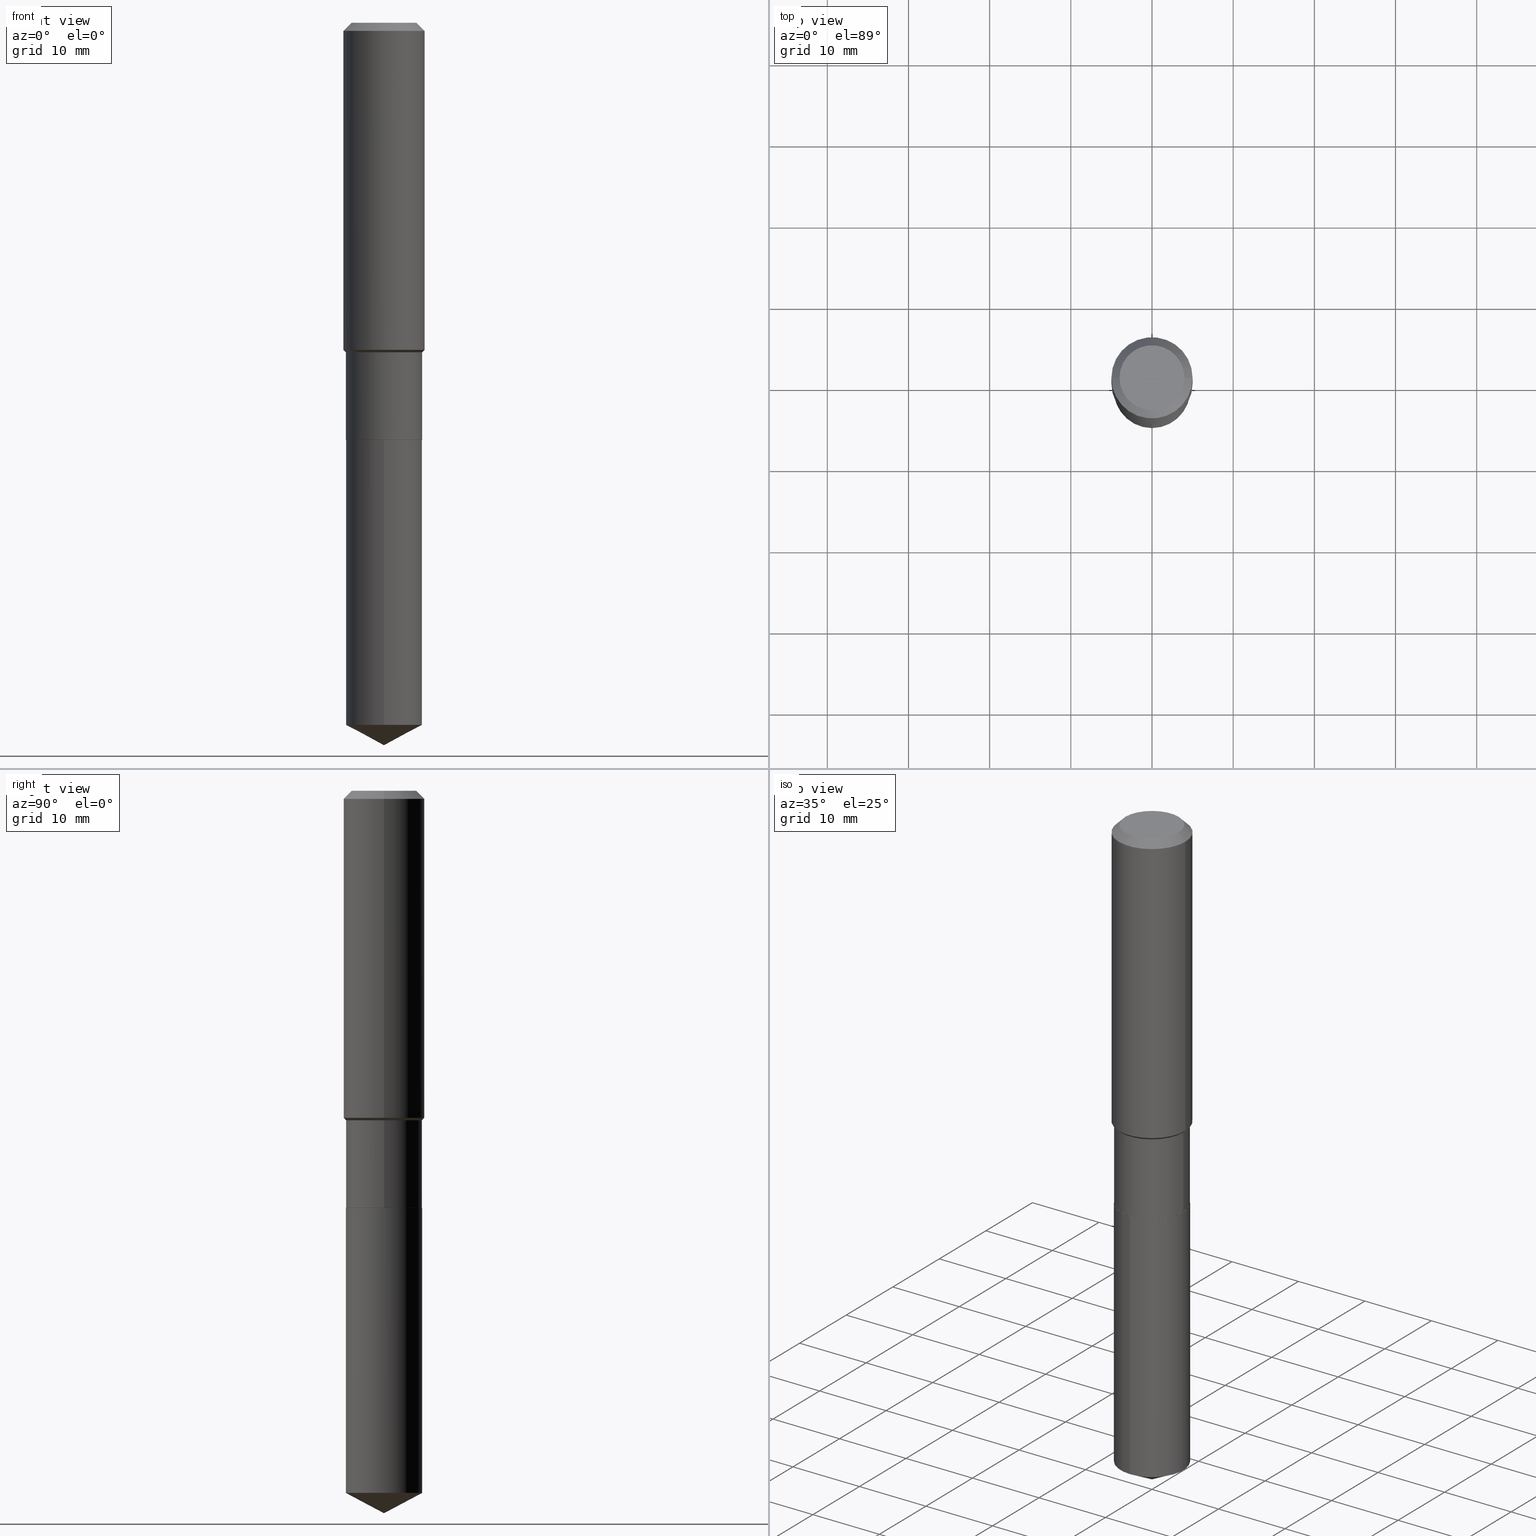
[diagram: canonical four-view strip — front | top / right | iso, engineering-drawing reading convention]
A machine part, canonical four-view strip (front | top / right | iso — engineering-drawing reading convention). The complete STEP part file that produces these views, byte-faithful:
ISO-10303-21;
HEADER;
FILE_DESCRIPTION (( 'STEP AP203' ),
    '1' );
FILE_NAME ('64664.STEP',
    '2024-04-24T18:39:49',
    ( '' ),
    ( '' ),
    'SwSTEP 2.0',
    'SolidWorks 2023',
    '' );
FILE_SCHEMA (( 'CONFIG_CONTROL_DESIGN' ));
ENDSEC;

DATA;
#1 = LINE ( 'NONE', #414, #420 ) ;
#2 = EDGE_CURVE ( 'NONE', #419, #167, #350, .T. ) ;
#3 = DIRECTION ( 'NONE',  ( -2.445468806185136597E-29, 3.491481338843145583E-15, 1.000000000000000000 ) ) ;
#4 = AXIS2_PLACEMENT_3D ( 'NONE', #230, #344, #196 ) ;
#5 = ADVANCED_FACE ( 'NONE', ( #395 ), #162, .T. ) ;
#6 = APPROVAL_DATE_TIME ( #483, #141 ) ;
#7 = UNCERTAINTY_MEASURE_WITH_UNIT (LENGTH_MEASURE( 1.000000000000000082E-05 ), #149, 'distance_accuracy_value', 'NONE');
#8 = AXIS2_PLACEMENT_3D ( 'NONE', #365, #328, #450 ) ;
#9 = EDGE_LOOP ( 'NONE', ( #110, #153, #85 ) ) ;
#10 = CARTESIAN_POINT ( 'NONE',  ( 4.948650676196241876E-29, -7.065361637282988500E-15, -2.023599999999999621 ) ) ;
#11 = VERTEX_POINT ( 'NONE', #296 ) ;
#12 = PRODUCT_RELATED_PRODUCT_CATEGORY ( 'detail', '', ( #374 ) ) ;
#13 = EDGE_LOOP ( 'NONE', ( #87, #258 ) ) ;
#14 = DIRECTION ( 'NONE',  ( 0.7071067811865450192, -7.319954787623246579E-15, -0.7071067811865500152 ) ) ;
#15 = AXIS2_PLACEMENT_3D ( 'NONE', #271, #127, #437 ) ;
#16 = DIRECTION ( 'NONE',  ( -2.445569636956695496E-29, 3.491336943439341849E-15, 1.000000000000000000 ) ) ;
#17 = DIRECTION ( 'NONE',  ( -0.7071067811866441621, 7.493145998870704414E-15, 0.7071067811864508723 ) ) ;
#18 = EDGE_CURVE ( 'NONE', #284, #47, #335, .T. ) ;
#19 = ORIENTED_EDGE ( 'NONE', *, *, #2, .T. ) ;
#20 = CARTESIAN_POINT ( 'NONE',  ( -0.1850499999999999090, -4.264527846947281342E-15, -1.597999999999999643 ) ) ;
#21 = CC_DESIGN_DATE_AND_TIME_ASSIGNMENT ( #347, #443, ( #315 ) ) ;
#22 = ADVANCED_FACE ( 'NONE', ( #140 ), #462, .T. ) ;
#23 = APPROVAL_ROLE ( '' ) ;
#24 = LINE ( 'NONE', #54, #73 ) ;
#25 = ORIENTED_EDGE ( 'NONE', *, *, #2, .F. ) ;
#26 = CARTESIAN_POINT ( 'NONE',  ( -0.1968500000000002192, -4.139484324329237071E-15, -1.586199999999999610 ) ) ;
#27 = VERTEX_POINT ( 'NONE', #373 ) ;
#28 = PERSON_AND_ORGANIZATION ( #158, #173 ) ;
#29 = PLANE ( 'NONE',  #305 ) ;
#30 = AXIS2_PLACEMENT_3D ( 'NONE', #371, #34, #178 ) ;
#31 = AXIS2_PLACEMENT_3D ( 'NONE', #279, #448, #96 ) ;
#32 = CC_DESIGN_APPROVAL ( #147, ( #234 ) ) ;
#33 = EDGE_CURVE ( 'NONE', #47, #419, #409, .T. ) ;
#34 = DIRECTION ( 'NONE',  ( -2.438088387897960049E-29, 3.491481338843145188E-15, 1.000000000000000000 ) ) ;
#35 = FACE_OUTER_BOUND ( 'NONE', #360, .T. ) ;
#36 = CARTESIAN_POINT ( 'NONE',  ( 0.000000000000000000, 0.000000000000000000, 0.000000000000000000 ) ) ;
#37 = DIRECTION ( 'NONE',  ( -2.445468806185136597E-29, 3.491481338843145583E-15, 1.000000000000000000 ) ) ;
#38 = AXIS2_PLACEMENT_3D ( 'NONE', #90, #237, #477 ) ;
#39 = PERSON_AND_ORGANIZATION_ROLE ( 'creator' ) ;
#40 = SHAPE_DEFINITION_REPRESENTATION ( #349, #340 ) ;
#41 = DATE_TIME_ROLE ( 'creation_date' ) ;
#42 = CIRCLE ( 'NONE', #490, 0.1850499999999999923 ) ;
#43 = EDGE_CURVE ( 'NONE', #396, #339, #376, .T. ) ;
#44 = VERTEX_POINT ( 'NONE', #69 ) ;
#45 = CIRCLE ( 'NONE', #386, 0.1850499999999999090 ) ;
#46 = CARTESIAN_POINT ( 'NONE',  ( 0.1850499999999999923, -8.355813140119411270E-15, -2.023099999999999898 ) ) ;
#47 = VERTEX_POINT ( 'NONE', #332 ) ;
#48 = DIRECTION ( 'NONE',  ( 1.000000000000000000, -6.982962677686265922E-15, 0.000000000000000000 ) ) ;
#49 = VERTEX_POINT ( 'NONE', #108 ) ;
#50 = FACE_OUTER_BOUND ( 'NONE', #351, .T. ) ;
#51 = DIRECTION ( 'NONE',  ( 1.000000000000000000, -6.982962677686265922E-15, 0.000000000000000000 ) ) ;
#52 = ORIENTED_EDGE ( 'NONE', *, *, #379, .F. ) ;
#53 = ORIENTED_EDGE ( 'NONE', *, *, #487, .T. ) ;
#54 = CARTESIAN_POINT ( 'NONE',  ( 8.568623368633910578E-29, -1.223387991319538437E-14, -3.503899999999999793 ) ) ;
#55 = ADVANCED_FACE ( 'NONE', ( #252 ), #221, .F. ) ;
#56 = PERSON_AND_ORGANIZATION ( #158, #173 ) ;
#57 = DIRECTION ( 'NONE',  ( -2.445468806185136597E-29, 3.491481338843145583E-15, 1.000000000000000000 ) ) ;
#58 = DIRECTION ( 'NONE',  ( -2.445468806185136597E-29, 3.491481338843145583E-15, 1.000000000000000000 ) ) ;
#59 = ORIENTED_EDGE ( 'NONE', *, *, #159, .F. ) ;
#60 = CIRCLE ( 'NONE', #31, 0.1850499999999999923 ) ;
#61 = CARTESIAN_POINT ( 'NONE',  ( 3.879002620370862839E-29, -5.538187699672996436E-15, -1.586199999999999610 ) ) ;
#62 = MECHANICAL_CONTEXT ( 'NONE', #408, 'mechanical' ) ;
#63 = CARTESIAN_POINT ( 'NONE',  ( 4.947427941793149075E-29, -7.063615896613566997E-15, -2.023099999999999898 ) ) ;
#64 = ORIENTED_EDGE ( 'NONE', *, *, #327, .F. ) ;
#65 = CARTESIAN_POINT ( 'NONE',  ( -9.427742298522567634E-47, 1.346031739168368355E-32, 3.855188123715870730E-18 ) ) ;
#66 = DIRECTION ( 'NONE',  ( 1.000000000000000000, -6.982962677686267499E-15, 0.000000000000000000 ) ) ;
#67 = APPROVAL_DATE_TIME ( #101, #147 ) ;
#68 = DIRECTION ( 'NONE',  ( 1.000000000000000000, -6.982962677686265922E-15, 0.000000000000000000 ) ) ;
#69 = CARTESIAN_POINT ( 'NONE',  ( -0.1845499999999999363, -5.751405791263613253E-15, -2.023599999999999621 ) ) ;
#70 = ORIENTED_EDGE ( 'NONE', *, *, #481, .F. ) ;
#71 = DIRECTION ( 'NONE',  ( -1.000000000000000000, 6.982962677686265922E-15, -4.876176775795935793E-29 ) ) ;
#72 = CLOSED_SHELL ( 'NONE', ( #331, #160, #22, #334, #425 ) ) ;
#73 = VECTOR ( 'NONE', #131, 39.37007874015748143 ) ;
#74 = AXIS2_PLACEMENT_3D ( 'NONE', #36, #348, #244 ) ;
#75 = DIRECTION ( 'NONE',  ( -2.445468806185136877E-29, 3.491481338843145188E-15, 1.000000000000000000 ) ) ;
#76 = DIRECTION ( 'NONE',  ( 1.000000000000000000, -6.982962677686265133E-15, 0.000000000000000000 ) ) ;
#77 = EDGE_LOOP ( 'NONE', ( #95, #192, #470, #342 ) ) ;
#78 = PERSON_AND_ORGANIZATION ( #158, #173 ) ;
#79 = ADVANCED_FACE ( 'NONE', ( #415 ), #281, .T. ) ;
#80 = CIRCLE ( 'NONE', #261, 0.1850499999999999923 ) ;
#81 = CIRCLE ( 'NONE', #405, 0.1845499999999999363 ) ;
#82 = LOCAL_TIME ( 14, 39, 49.00000000000000000, #129 ) ;
#83 = DIRECTION ( 'NONE',  ( -2.445569636956695496E-29, 3.491336943439341849E-15, 1.000000000000000000 ) ) ;
#84 = DESIGN_CONTEXT ( 'detailed design', #377, 'design' ) ;
#85 = ORIENTED_EDGE ( 'NONE', *, *, #225, .F. ) ;
#86 = VECTOR ( 'NONE', #94, 39.37007874015748143 ) ;
#87 = ORIENTED_EDGE ( 'NONE', *, *, #245, .F. ) ;
#88 = AXIS2_PLACEMENT_3D ( 'NONE', #292, #372, #71 ) ;
#89 = CARTESIAN_POINT ( 'NONE',  ( 3.907859152283848022E-29, -5.579387179471346287E-15, -1.597999999999999643 ) ) ;
#90 = CARTESIAN_POINT ( 'NONE',  ( 4.948650676196241876E-29, -7.065361637282988500E-15, -2.023599999999999621 ) ) ;
#91 = VERTEX_POINT ( 'NONE', #222 ) ;
#92 = ADVANCED_FACE ( 'NONE', ( #35 ), #180, .T. ) ;
#93 = PERSON_AND_ORGANIZATION ( #158, #173 ) ;
#94 = DIRECTION ( 'NONE',  ( -2.445468806185136877E-29, 3.491481338843145188E-15, 1.000000000000000000 ) ) ;
#95 = ORIENTED_EDGE ( 'NONE', *, *, #481, .T. ) ;
#96 = DIRECTION ( 'NONE',  ( -6.982962677686265133E-15, -1.000000000000000000, 2.952551195530141356E-15 ) ) ;
#97 = DIRECTION ( 'NONE',  ( -2.445468806185136597E-29, 3.491481338843145583E-15, 1.000000000000000000 ) ) ;
#98 = EDGE_LOOP ( 'NONE', ( #263, #388, #115, #59 ) ) ;
#99 = CARTESIAN_POINT ( 'NONE',  ( 3.907859152283848022E-29, -5.579387179471346287E-15, -1.597999999999999643 ) ) ;
#100 = DIRECTION ( 'NONE',  ( 2.445468806185136597E-29, -3.491481338843145583E-15, -1.000000000000000000 ) ) ;
#101 = DATE_AND_TIME ( #285, #290 ) ;
#102 = CONICAL_SURFACE ( 'NONE', #4, 0.1968500000000000250, 0.7853981633974447263 ) ;
#103 = CIRCLE ( 'NONE', #326, 0.1574800000000000089 ) ;
#104 = CALENDAR_DATE ( 2024, 24, 4 ) ;
#105 = DIRECTION ( 'NONE',  ( 2.445569636956695776E-29, -3.491336943439341455E-15, -1.000000000000000000 ) ) ;
#106 = DIRECTION ( 'NONE',  ( -2.445569636956695496E-29, 3.491336943439341849E-15, 1.000000000000000000 ) ) ;
#107 = DIMENSIONAL_EXPONENTS ( 1.000000000000000000, 0.000000000000000000, 0.000000000000000000, 0.000000000000000000, 0.000000000000000000, 0.000000000000000000, 0.000000000000000000 ) ;
#108 = CARTESIAN_POINT ( 'NONE',  ( 0.1845499999999999363, -8.354067399449988978E-15, -2.023599999999999621 ) ) ;
#109 = EDGE_CURVE ( 'NONE', #49, #284, #361, .T. ) ;
#110 = ORIENTED_EDGE ( 'NONE', *, *, #116, .F. ) ;
#111 = CARTESIAN_POINT ( 'NONE',  ( 3.907859152283848022E-29, -5.579387179471346287E-15, -1.597999999999999643 ) ) ;
#112 = VECTOR ( 'NONE', #268, 39.37007874015748143 ) ;
#113 = ORIENTED_EDGE ( 'NONE', *, *, #293, .F. ) ;
#114 = AXIS2_PLACEMENT_3D ( 'NONE', #89, #57, #164 ) ;
#115 = ORIENTED_EDGE ( 'NONE', *, *, #375, .T. ) ;
#116 = EDGE_CURVE ( 'NONE', #197, #27, #324, .T. ) ;
#117 = DIRECTION ( 'NONE',  ( -2.445468806185136597E-29, 3.491481338843145583E-15, 1.000000000000000000 ) ) ;
#118 = ORIENTED_EDGE ( 'NONE', *, *, #43, .F. ) ;
#119 = CARTESIAN_POINT ( 'NONE',  ( -0.1845499999999999363, -5.754055018437723665E-15, -2.023599999999999621 ) ) ;
#120 = DIRECTION ( 'NONE',  ( -0.7071067811865526798, 7.493145998870373093E-15, 0.7071067811865424657 ) ) ;
#121 = ORIENTED_EDGE ( 'NONE', *, *, #116, .T. ) ;
#122 = ORIENTED_EDGE ( 'NONE', *, *, #204, .F. ) ;
#123 = CYLINDRICAL_SURFACE ( 'NONE', #15, 0.1850499999999999923 ) ;
#124 = CARTESIAN_POINT ( 'NONE',  ( -1.292197243505793786E-15, -0.1850500000000070422, -2.023599999999999177 ) ) ;
#125 = CC_DESIGN_PERSON_AND_ORGANIZATION_ASSIGNMENT ( #78, #308, ( #190 ) ) ;
#126 = VERTEX_POINT ( 'NONE', #26 ) ;
#127 = DIRECTION ( 'NONE',  ( -2.445569636956695496E-29, 3.491336943439341849E-15, 1.000000000000000000 ) ) ;
#128 = DIRECTION ( 'NONE',  ( 1.000000000000000000, -6.982962677686265133E-15, 0.000000000000000000 ) ) ;
#129 = COORDINATED_UNIVERSAL_TIME_OFFSET ( 5, 0, .BEHIND. ) ;
#130 = APPLICATION_PROTOCOL_DEFINITION ( 'international standard', 'config_control_design', 1994, #408 ) ;
#131 = DIRECTION ( 'NONE',  ( -6.165590087286832085E-15, -0.8829475928589258782, 0.4694715627858925822 ) ) ;
#132 = VECTOR ( 'NONE', #17, 39.37007874015748143 ) ;
#133 = CARTESIAN_POINT ( 'NONE',  ( 0.000000000000000000, 0.000000000000000000, 0.000000000000000000 ) ) ;
#134 =( LENGTH_UNIT ( ) NAMED_UNIT ( * ) SI_UNIT ( $, .METRE. ) );
#135 = ADVANCED_FACE ( 'NONE', ( #286 ), #155, .T. ) ;
#136 = VECTOR ( 'NONE', #216, 39.37007874015748143 ) ;
#137 = CIRCLE ( 'NONE', #463, 0.1845499999999999363 ) ;
#138 = APPROVAL_PERSON_ORGANIZATION ( #93, #141, #200 ) ;
#139 = CIRCLE ( 'NONE', #406, 0.1968500000000002192 ) ;
#140 = FACE_OUTER_BOUND ( 'NONE', #9, .T. ) ;
#141 = APPROVAL ( #310, 'UNSPECIFIED' ) ;
#142 = FACE_OUTER_BOUND ( 'NONE', #436, .T. ) ;
#143 = CARTESIAN_POINT ( 'NONE',  ( 0.1850499999999999090, -6.871584422977188194E-15, -1.597999999999999643 ) ) ;
#144 = EDGE_LOOP ( 'NONE', ( #113, #458, #19, #435 ) ) ;
#145 =( NAMED_UNIT ( * ) PLANE_ANGLE_UNIT ( ) SI_UNIT ( $, .RADIAN. ) );
#146 = CONICAL_SURFACE ( 'NONE', #38, 0.1845499999999999363, 0.7853981633975849475 ) ;
#147 = APPROVAL ( #452, 'UNSPECIFIED' ) ;
#148 = ORIENTED_EDGE ( 'NONE', *, *, #379, .T. ) ;
#149 =( CONVERSION_BASED_UNIT ( 'INCH', #299 ) LENGTH_UNIT ( ) NAMED_UNIT ( #107 ) );
#150 = ORIENTED_EDGE ( 'NONE', *, *, #18, .F. ) ;
#151 = DIRECTION ( 'NONE',  ( -2.445569636956695496E-29, 3.491336943439341849E-15, 1.000000000000000000 ) ) ;
#152 = COORDINATED_UNIVERSAL_TIME_OFFSET ( 5, 0, .BEHIND. ) ;
#153 = ORIENTED_EDGE ( 'NONE', *, *, #195, .T. ) ;
#154 = EDGE_LOOP ( 'NONE', ( #53, #270 ) ) ;
#155 = CONICAL_SURFACE ( 'NONE', #457, 0.1968500000000000250, 0.7853981633974447263 ) ;
#156 = CC_DESIGN_SECURITY_CLASSIFICATION ( #315, ( #190 ) ) ;
#157 = PERSON_AND_ORGANIZATION ( #158, #173 ) ;
#158 = PERSON ( 'UNSPECIFIED', 'UNSPECIFIED', 'UNSPECIFIED', ('UNSPECIFIED'), ('UNSPECIFIED'), ('UNSPECIFIED') ) ;
#159 = EDGE_CURVE ( 'NONE', #91, #480, #273, .T. ) ;
#160 = ADVANCED_FACE ( 'NONE', ( #423 ), #378, .T. ) ;
#161 = CARTESIAN_POINT ( 'NONE',  ( -0.1968500000000000250, 1.237136582792286225E-15, -0.03937000000000029365 ) ) ;
#162 = CYLINDRICAL_SURFACE ( 'NONE', #404, 0.1968500000000001082 ) ;
#163 = LINE ( 'NONE', #124, #181 ) ;
#164 = DIRECTION ( 'NONE',  ( 1.000000000000000000, -6.982962677686265133E-15, 0.000000000000000000 ) ) ;
#165 = VERTEX_POINT ( 'NONE', #439 ) ;
#166 = DIRECTION ( 'NONE',  ( -2.445569636956695215E-29, 3.491336943439341455E-15, 1.000000000000000000 ) ) ;
#167 = VERTEX_POINT ( 'NONE', #266 ) ;
#168 = DIRECTION ( 'NONE',  ( 1.000000000000000000, -6.982962677686265922E-15, 0.000000000000000000 ) ) ;
#169 = DIRECTION ( 'NONE',  ( -2.445468806185136597E-29, 3.491481338843145583E-15, 1.000000000000000000 ) ) ;
#170 = CARTESIAN_POINT ( 'NONE',  ( -0.1850499999999999923, -5.006642205518390514E-15, -2.023099999999999898 ) ) ;
#171 = CALENDAR_DATE ( 2024, 24, 4 ) ;
#172 = EDGE_CURVE ( 'NONE', #480, #167, #431, .T. ) ;
#173 = ORGANIZATION ( 'UNSPECIFIED', 'UNSPECIFIED', '' ) ;
#174 = CARTESIAN_POINT ( 'NONE',  ( 0.1968500000000002192, -6.912783902775538833E-15, -1.586199999999999610 ) ) ;
#175 = VECTOR ( 'NONE', #321, 39.37007874015748143 ) ;
#176 = DIRECTION ( 'NONE',  ( -2.445569636956695215E-29, 3.491336943439341455E-15, 1.000000000000000000 ) ) ;
#177 = CARTESIAN_POINT ( 'NONE',  ( 4.948650676196241876E-29, -7.065361637282988500E-15, -2.023599999999999621 ) ) ;
#178 = DIRECTION ( 'NONE',  ( 1.000000000000000000, -6.982962677686265922E-15, 4.876176775795935793E-29 ) ) ;
#179 = EDGE_CURVE ( 'NONE', #460, #47, #199, .T. ) ;
#180 = CYLINDRICAL_SURFACE ( 'NONE', #385, 0.1850499999999999368 ) ;
#181 = VECTOR ( 'NONE', #166, 39.37007874015748143 ) ;
#182 = PLANE ( 'NONE',  #88 ) ;
#183 = CARTESIAN_POINT ( 'NONE',  ( 4.948650676196241876E-29, -7.065361637282988500E-15, -2.023599999999999621 ) ) ;
#184 = PERSON_AND_ORGANIZATION ( #158, #173 ) ;
#185 = MANIFOLD_SOLID_BREP ( 'Body-Move/Copy2[2]', #325 ) ;
#186 = FACE_OUTER_BOUND ( 'NONE', #154, .T. ) ;
#187 = EDGE_CURVE ( 'NONE', #44, #265, #479, .T. ) ;
#188 = AXIS2_PLACEMENT_3D ( 'NONE', #313, #381, #467 ) ;
#189 = CARTESIAN_POINT ( 'NONE',  ( 3.907859152283848022E-29, -5.579387179471346287E-15, -1.597999999999999643 ) ) ;
#190 = PRODUCT_DEFINITION_FORMATION_WITH_SPECIFIED_SOURCE ( 'ANY', '', #374, .NOT_KNOWN. ) ;
#191 = ORIENTED_EDGE ( 'NONE', *, *, #316, .T. ) ;
#192 = ORIENTED_EDGE ( 'NONE', *, *, #229, .T. ) ;
#193 = ORIENTED_EDGE ( 'NONE', *, *, #260, .F. ) ;
#194 = COORDINATED_UNIVERSAL_TIME_OFFSET ( 5, 0, .BEHIND. ) ;
#195 = EDGE_CURVE ( 'NONE', #197, #165, #24, .T. ) ;
#196 = DIRECTION ( 'NONE',  ( -1.000000000000000000, 6.982962677686265922E-15, 0.000000000000000000 ) ) ;
#197 = VERTEX_POINT ( 'NONE', #278 ) ;
#198 = CARTESIAN_POINT ( 'NONE',  ( 1.314859332524148564E-15, 0.1850499999999929146, -2.023600000000000065 ) ) ;
#199 = CIRCLE ( 'NONE', #114, 0.1850499999999999090 ) ;
#200 = APPROVAL_ROLE ( '' ) ;
#201 = CARTESIAN_POINT ( 'NONE',  ( 0.000000000000000000, 0.000000000000000000, 0.000000000000000000 ) ) ;
#202 = DIRECTION ( 'NONE',  ( -6.982962677686265133E-15, -1.000000000000000000, 2.952551195530141356E-15 ) ) ;
#203 = CARTESIAN_POINT ( 'NONE',  ( 0.1845499999999999363, -8.354067399449988978E-15, -2.023599999999999621 ) ) ;
#204 = EDGE_CURVE ( 'NONE', #11, #167, #231, .T. ) ;
#205 = DIRECTION ( 'NONE',  ( 1.000000000000000000, -6.982962677686267499E-15, 4.876176775795935793E-29 ) ) ;
#206 = MANIFOLD_SOLID_BREP ( 'Body-Move/Copy2[1]', #72 ) ;
#207 = CARTESIAN_POINT ( 'NONE',  ( 4.948650676196241876E-29, -7.065361637282988500E-15, -2.023599999999999621 ) ) ;
#208 = DIRECTION ( 'NONE',  ( -2.445468806185136597E-29, 3.491481338843145583E-15, 1.000000000000000000 ) ) ;
#209 = AXIS2_PLACEMENT_3D ( 'NONE', #61, #384, #168 ) ;
#210 = CARTESIAN_POINT ( 'NONE',  ( 3.879002620370862839E-29, -5.538187699672996436E-15, -1.586199999999999610 ) ) ;
#211 = EDGE_CURVE ( 'NONE', #126, #419, #232, .T. ) ;
#212 = ORIENTED_EDGE ( 'NONE', *, *, #187, .F. ) ;
#213 = DIRECTION ( 'NONE',  ( 6.982962677686265922E-15, 1.000000000000000000, -3.491336943439341455E-15 ) ) ;
#214 = CC_DESIGN_PERSON_AND_ORGANIZATION_ASSIGNMENT ( #343, #461, ( #190 ) ) ;
#215 = CARTESIAN_POINT ( 'NONE',  ( -0.1850499999999999090, -5.006642205518391303E-15, -1.597999999999999643 ) ) ;
#216 = DIRECTION ( 'NONE',  ( -2.445468806185136877E-29, 3.491481338843145188E-15, 1.000000000000000000 ) ) ;
#217 = DIRECTION ( 'NONE',  ( 1.000000000000000000, -6.982962677686265922E-15, 0.000000000000000000 ) ) ;
#218 = AXIS2_PLACEMENT_3D ( 'NONE', #111, #3, #76 ) ;
#219 = CARTESIAN_POINT ( 'NONE',  ( 4.948650676196241876E-29, -7.065361637282988500E-15, -2.023599999999999621 ) ) ;
#220 = DIRECTION ( 'NONE',  ( -2.445468806185136597E-29, 3.491481338843145583E-15, 1.000000000000000000 ) ) ;
#221 = PLANE ( 'NONE',  #30 ) ;
#222 = CARTESIAN_POINT ( 'NONE',  ( -0.1574800000000000089, 1.168406772637159618E-15, 3.855188123707939751E-18 ) ) ;
#223 = ORIENTED_EDGE ( 'NONE', *, *, #412, .T. ) ;
#224 = SECURITY_CLASSIFICATION_LEVEL ( 'unclassified' ) ;
#225 = EDGE_CURVE ( 'NONE', #27, #165, #42, .T. ) ;
#226 = CIRCLE ( 'NONE', #243, 0.1968500000000000250 ) ;
#227 = CC_DESIGN_APPROVAL ( #301, ( #190 ) ) ;
#228 = ORIENTED_EDGE ( 'NONE', *, *, #487, .F. ) ;
#229 = EDGE_CURVE ( 'NONE', #460, #126, #356, .T. ) ;
#230 = CARTESIAN_POINT ( 'NONE',  ( 9.627810689950954155E-31, -1.374596203102556547E-16, -0.03937000000000029365 ) ) ;
#231 = LINE ( 'NONE', #264, #297 ) ;
#232 = CIRCLE ( 'NONE', #209, 0.1968500000000002192 ) ;
#233 = APPROVAL_PERSON_ORGANIZATION ( #157, #301, #465 ) ;
#234 = PRODUCT_DEFINITION ( 'UNKNOWN', '', #190, #84 ) ;
#235 = CARTESIAN_POINT ( 'NONE',  ( -8.771344176174021761E-28, 1.252206226569713865E-13, 35.86617874015747987 ) ) ;
#236 = EDGE_LOOP ( 'NONE', ( #122, #228, #391, #485 ) ) ;
#237 = DIRECTION ( 'NONE',  ( -2.445468806185136597E-29, 3.491481338843145583E-15, 1.000000000000000000 ) ) ;
#238 = CYLINDRICAL_SURFACE ( 'NONE', #304, 0.1968500000000001082 ) ;
#239 = ORIENTED_EDGE ( 'NONE', *, *, #424, .T. ) ;
#240 = DIRECTION ( 'NONE',  ( 1.000000000000000000, -6.982962677686265922E-15, 0.000000000000000000 ) ) ;
#241 = EDGE_LOOP ( 'NONE', ( #239, #362, #303, #25 ) ) ;
#242 = VECTOR ( 'NONE', #257, 39.37007874015748143 ) ;
#243 = AXIS2_PLACEMENT_3D ( 'NONE', #352, #276, #357 ) ;
#244 = DIRECTION ( 'NONE',  ( 1.000000000000000000, 0.000000000000000000, 0.000000000000000000 ) ) ;
#245 = EDGE_CURVE ( 'NONE', #49, #44, #81, .T. ) ;
#246 = ORIENTED_EDGE ( 'NONE', *, *, #399, .F. ) ;
#247 = CYLINDRICAL_SURFACE ( 'NONE', #8, 0.1850499999999999368 ) ;
#248 = AXIS2_PLACEMENT_3D ( 'NONE', #429, #394, #48 ) ;
#249 = CC_DESIGN_PERSON_AND_ORGANIZATION_ASSIGNMENT ( #184, #39, ( #234 ) ) ;
#250 = CARTESIAN_POINT ( 'NONE',  ( 1.314859332524114446E-15, 0.1850499999999929146, -2.023600000000000065 ) ) ;
#251 = DIRECTION ( 'NONE',  ( -2.445569636956695496E-29, 3.491336943439341849E-15, 1.000000000000000000 ) ) ;
#252 = FACE_OUTER_BOUND ( 'NONE', #13, .T. ) ;
#253 = ADVANCED_FACE ( 'NONE', ( #473 ), #102, .T. ) ;
#254 = ORIENTED_EDGE ( 'NONE', *, *, #445, .T. ) ;
#255 = ORIENTED_EDGE ( 'NONE', *, *, #179, .T. ) ;
#256 = VECTOR ( 'NONE', #358, 39.37007874015748143 ) ;
#257 = DIRECTION ( 'NONE',  ( 0.7071067811865526798, -2.468850131082310309E-15, 0.7071067811865424657 ) ) ;
#258 = ORIENTED_EDGE ( 'NONE', *, *, #316, .F. ) ;
#259 = CYLINDRICAL_SURFACE ( 'NONE', #364, 0.1850499999999999923 ) ;
#260 = EDGE_CURVE ( 'NONE', #165, #396, #163, .T. ) ;
#261 = AXIS2_PLACEMENT_3D ( 'NONE', #262, #272, #438 ) ;
#262 = CARTESIAN_POINT ( 'NONE',  ( 4.947427941793149075E-29, -7.063615896613566997E-15, -2.023099999999999898 ) ) ;
#263 = ORIENTED_EDGE ( 'NONE', *, *, #280, .F. ) ;
#264 = CARTESIAN_POINT ( 'NONE',  ( 0.1968500000000000250, -1.487948651171581601E-15, -0.03937000000000029365 ) ) ;
#265 = VERTEX_POINT ( 'NONE', #170 ) ;
#266 = CARTESIAN_POINT ( 'NONE',  ( 0.1968500000000000250, -1.512055823412797189E-15, -0.03937000000000029365 ) ) ;
#267 = CIRCLE ( 'NONE', #188, 0.1574800000000000089 ) ;
#268 = DIRECTION ( 'NONE',  ( -2.445468806185136877E-29, 3.491481338843145188E-15, 1.000000000000000000 ) ) ;
#269 = ORIENTED_EDGE ( 'NONE', *, *, #275, .F. ) ;
#270 = ORIENTED_EDGE ( 'NONE', *, *, #280, .T. ) ;
#271 = CARTESIAN_POINT ( 'NONE',  ( 4.948650676196241876E-29, -7.065361637282988500E-15, -2.023599999999999621 ) ) ;
#272 = DIRECTION ( 'NONE',  ( -2.445468806185136597E-29, 3.491481338843145583E-15, 1.000000000000000000 ) ) ;
#273 = LINE ( 'NONE', #161, #175 ) ;
#274 = CARTESIAN_POINT ( 'NONE',  ( 0.1968500000000001082, -1.374596203102542397E-15, 9.598753983154305062E-30 ) ) ;
#275 = EDGE_CURVE ( 'NONE', #265, #284, #80, .T. ) ;
#276 = DIRECTION ( 'NONE',  ( -2.445468806185136597E-29, 3.491481338843145583E-15, 1.000000000000000000 ) ) ;
#277 = CARTESIAN_POINT ( 'NONE',  ( -0.1968500000000001082, 1.398703375343757985E-15, -9.682923725166787881E-30 ) ) ;
#278 = CARTESIAN_POINT ( 'NONE',  ( 8.569031450932565093E-29, -1.223329551611711010E-14, -3.503899999999999793 ) ) ;
#279 = CARTESIAN_POINT ( 'NONE',  ( 8.328200891436510860E-29, -1.189006519115920391E-14, -3.405507169671043499 ) ) ;
#280 = EDGE_CURVE ( 'NONE', #11, #91, #267, .T. ) ;
#281 = CONICAL_SURFACE ( 'NONE', #218, 0.1850499999999999090, 0.7853981633974554954 ) ;
#282 = AXIS2_PLACEMENT_3D ( 'NONE', #235, #83, #311 ) ;
#283 = LOCAL_TIME ( 14, 39, 49.00000000000000000, #194 ) ;
#284 = VERTEX_POINT ( 'NONE', #46 ) ;
#285 = CALENDAR_DATE ( 2024, 24, 4 ) ;
#286 = FACE_OUTER_BOUND ( 'NONE', #236, .T. ) ;
#287 = ADVANCED_FACE ( 'NONE', ( #426 ), #484, .T. ) ;
#288 = DIRECTION ( 'NONE',  ( 1.000000000000000000, -6.982962677686265922E-15, 4.876223630392693006E-29 ) ) ;
#289 = CIRCLE ( 'NONE', #353, 0.1850499999999999923 ) ;
#290 = LOCAL_TIME ( 14, 39, 49.00000000000000000, #323 ) ;
#291 =( NAMED_UNIT ( * ) SI_UNIT ( $, .STERADIAN. ) SOLID_ANGLE_UNIT ( ) );
#292 = CARTESIAN_POINT ( 'NONE',  ( -4.713871149261283817E-47, 6.730158695841841775E-33, 1.927594061857935365E-18 ) ) ;
#293 = EDGE_CURVE ( 'NONE', #126, #480, #428, .T. ) ;
#294 = CARTESIAN_POINT ( 'NONE',  ( 4.948650676196241876E-29, -7.065361637282988500E-15, -2.023599999999999621 ) ) ;
#295 = CC_DESIGN_PERSON_AND_ORGANIZATION_ASSIGNMENT ( #56, #442, ( #315 ) ) ;
#296 = CARTESIAN_POINT ( 'NONE',  ( 0.1574800000000000089, -1.284169937930321189E-15, 3.855188123724205385E-18 ) ) ;
#297 = VECTOR ( 'NONE', #14, 39.37007874015748143 ) ;
#298 = ADVANCED_FACE ( 'NONE', ( #433 ), #238, .T. ) ;
#299 = LENGTH_MEASURE_WITH_UNIT ( LENGTH_MEASURE( 0.02539999999999999897 ), #134 );
#300 = ORIENTED_EDGE ( 'NONE', *, *, #211, .F. ) ;
#301 = APPROVAL ( #306, 'UNSPECIFIED' ) ;
#302 = DATE_AND_TIME ( #416, #413 ) ;
#303 = ORIENTED_EDGE ( 'NONE', *, *, #375, .F. ) ;
#304 = AXIS2_PLACEMENT_3D ( 'NONE', #441, #97, #397 ) ;
#305 = AXIS2_PLACEMENT_3D ( 'NONE', #219, #105, #213 ) ;
#306 = APPROVAL_STATUS ( 'not_yet_approved' ) ;
#307 = DIRECTION ( 'NONE',  ( 1.000000000000000000, -6.982962677686266711E-15, 4.876176775795935793E-29 ) ) ;
#308 = PERSON_AND_ORGANIZATION_ROLE ( 'design_supplier' ) ;
#309 = ADVANCED_FACE ( 'NONE', ( #186 ), #182, .F. ) ;
#310 = APPROVAL_STATUS ( 'not_yet_approved' ) ;
#311 = DIRECTION ( 'NONE',  ( -6.982962677686266711E-15, -1.000000000000000000, 3.541896320645566785E-15 ) ) ;
#312 = EDGE_LOOP ( 'NONE', ( #368, #121, #52 ) ) ;
#313 = CARTESIAN_POINT ( 'NONE',  ( -9.427742298522567634E-47, 1.346031739168368355E-32, 3.855188123715870730E-18 ) ) ;
#314 = ORIENTED_EDGE ( 'NONE', *, *, #187, .T. ) ;
#315 = SECURITY_CLASSIFICATION ( '', '', #224 ) ;
#316 = EDGE_CURVE ( 'NONE', #44, #49, #137, .T. ) ;
#317 = ORIENTED_EDGE ( 'NONE', *, *, #225, .T. ) ;
#318 = CARTESIAN_POINT ( 'NONE',  ( 8.328200891436510860E-29, -1.189006519115920391E-14, -3.405507169671043499 ) ) ;
#319 = DIRECTION ( 'NONE',  ( -6.982962677686265133E-15, -1.000000000000000000, 2.952551195530141356E-15 ) ) ;
#320 = CALENDAR_DATE ( 2024, 24, 4 ) ;
#321 = DIRECTION ( 'NONE',  ( -0.7071067811865450192, 2.468850131082230634E-15, -0.7071067811865500152 ) ) ;
#322 = ORIENTED_EDGE ( 'NONE', *, *, #229, .F. ) ;
#323 = COORDINATED_UNIVERSAL_TIME_OFFSET ( 5, 0, .BEHIND. ) ;
#324 = LINE ( 'NONE', #402, #367 ) ;
#325 = CLOSED_SHELL ( 'NONE', ( #333, #253, #5, #79, #92, #464, #287, #298, #135, #309, #55, #454 ) ) ;
#326 = AXIS2_PLACEMENT_3D ( 'NONE', #65, #208, #288 ) ;
#327 = EDGE_CURVE ( 'NONE', #265, #460, #1, .T. ) ;
#328 = DIRECTION ( 'NONE',  ( -2.445468806185136597E-29, 3.491481338843145583E-15, 1.000000000000000000 ) ) ;
#329 = AXIS2_PLACEMENT_3D ( 'NONE', #177, #251, #411 ) ;
#330 = CIRCLE ( 'NONE', #444, 0.1850499999999999923 ) ;
#331 = ADVANCED_FACE ( 'NONE', ( #459 ), #259, .T. ) ;
#332 = CARTESIAN_POINT ( 'NONE',  ( 0.1850499999999999090, -6.871584422977188194E-15, -1.597999999999999643 ) ) ;
#333 = ADVANCED_FACE ( 'NONE', ( #432 ), #146, .T. ) ;
#334 = ADVANCED_FACE ( 'NONE', ( #50 ), #123, .T. ) ;
#335 = LINE ( 'NONE', #489, #136 ) ;
#336 = CARTESIAN_POINT ( 'NONE',  ( 4.948650676196241876E-29, -7.065361637282988500E-15, -2.023599999999999621 ) ) ;
#337 = APPROVAL_DATE_TIME ( #380, #301 ) ;
#338 =( GEOMETRIC_REPRESENTATION_CONTEXT ( 3 ) GLOBAL_UNCERTAINTY_ASSIGNED_CONTEXT ( ( #7 ) ) GLOBAL_UNIT_ASSIGNED_CONTEXT ( ( #149, #145, #291 ) ) REPRESENTATION_CONTEXT ( 'NONE', 'WORKASPACE' ) );
#339 = VERTEX_POINT ( 'NONE', #198 ) ;
#340 = ADVANCED_BREP_SHAPE_REPRESENTATION ( '64664', ( #206, #185, #74 ), #338 ) ;
#341 = ORIENTED_EDGE ( 'NONE', *, *, #179, .F. ) ;
#342 = ORIENTED_EDGE ( 'NONE', *, *, #33, .F. ) ;
#343 = PERSON_AND_ORGANIZATION ( #158, #173 ) ;
#344 = DIRECTION ( 'NONE',  ( 2.445468806185136597E-29, -3.491481338843145583E-15, -1.000000000000000000 ) ) ;
#345 = EDGE_LOOP ( 'NONE', ( #389, #314, #246, #447 ) ) ;
#346 = VECTOR ( 'NONE', #120, 39.37007874015748143 ) ;
#347 = DATE_AND_TIME ( #320, #82 ) ;
#348 = DIRECTION ( 'NONE',  ( 0.000000000000000000, 0.000000000000000000, 1.000000000000000000 ) ) ;
#349 = PRODUCT_DEFINITION_SHAPE ( 'NONE', 'NONE',  #234 ) ;
#350 = LINE ( 'NONE', #274, #86 ) ;
#351 = EDGE_LOOP ( 'NONE', ( #440, #317, #410, #382 ) ) ;
#352 = CARTESIAN_POINT ( 'NONE',  ( 9.627810689950954155E-31, -1.374596203102556547E-16, -0.03937000000000029365 ) ) ;
#353 = AXIS2_PLACEMENT_3D ( 'NONE', #63, #482, #66 ) ;
#354 = DIRECTION ( 'NONE',  ( -2.445468806185136597E-29, 3.491481338843145583E-15, 1.000000000000000000 ) ) ;
#355 = CC_DESIGN_APPROVAL ( #141, ( #315 ) ) ;
#356 = LINE ( 'NONE', #20, #346 ) ;
#357 = DIRECTION ( 'NONE',  ( 1.000000000000000000, -6.982962677686265922E-15, 0.000000000000000000 ) ) ;
#358 = DIRECTION ( 'NONE',  ( 0.7071067811866441621, -2.468850131083269169E-15, 0.7071067811864508723 ) ) ;
#359 = APPLICATION_PROTOCOL_DEFINITION ( 'international standard', 'config_control_design', 1994, #377 ) ;
#360 = EDGE_LOOP ( 'NONE', ( #387, #390, #70, #150 ) ) ;
#361 = LINE ( 'NONE', #203, #256 ) ;
#362 = ORIENTED_EDGE ( 'NONE', *, *, #293, .T. ) ;
#363 = CC_DESIGN_PERSON_AND_ORGANIZATION_ASSIGNMENT ( #28, #400, ( #374 ) ) ;
#364 = AXIS2_PLACEMENT_3D ( 'NONE', #183, #151, #468 ) ;
#365 = CARTESIAN_POINT ( 'NONE',  ( 0.000000000000000000, 0.000000000000000000, 0.000000000000000000 ) ) ;
#366 = FACE_OUTER_BOUND ( 'NONE', #471, .T. ) ;
#367 = VECTOR ( 'NONE', #393, 39.37007874015748854 ) ;
#368 = ORIENTED_EDGE ( 'NONE', *, *, #195, .F. ) ;
#369 = VECTOR ( 'NONE', #176, 39.37007874015748143 ) ;
#370 = LINE ( 'NONE', #250, #369 ) ;
#371 = CARTESIAN_POINT ( 'NONE',  ( 4.948650676196241876E-29, -7.065361637282988500E-15, -2.023599999999999621 ) ) ;
#372 = DIRECTION ( 'NONE',  ( 2.438088387897960049E-29, -3.491481338843145188E-15, -1.000000000000000000 ) ) ;
#373 = CARTESIAN_POINT ( 'NONE',  ( 1.314859332524147972E-15, 0.1850499999999881129, -3.405507169671043943 ) ) ;
#374 = PRODUCT ( '64664', '64664', '', ( #62 ) ) ;
#375 = EDGE_CURVE ( 'NONE', #167, #480, #226, .T. ) ;
#376 = CIRCLE ( 'NONE', #329, 0.1850499999999999923 ) ;
#377 = APPLICATION_CONTEXT ( 'configuration controlled 3d designs of mechanical parts and assemblies' ) ;
#378 = CONICAL_SURFACE ( 'NONE', #282, 74.04434902938341168, 1.082104136236485825 ) ;
#379 = EDGE_CURVE ( 'NONE', #165, #27, #60, .T. ) ;
#380 = DATE_AND_TIME ( #104, #283 ) ;
#381 = DIRECTION ( 'NONE',  ( -2.445468806185136597E-29, 3.491481338843145583E-15, 1.000000000000000000 ) ) ;
#382 = ORIENTED_EDGE ( 'NONE', *, *, #412, .F. ) ;
#383 = ORIENTED_EDGE ( 'NONE', *, *, #18, .T. ) ;
#384 = DIRECTION ( 'NONE',  ( -2.445468806185136597E-29, 3.491481338843145583E-15, 1.000000000000000000 ) ) ;
#385 = AXIS2_PLACEMENT_3D ( 'NONE', #133, #169, #205 ) ;
#386 = AXIS2_PLACEMENT_3D ( 'NONE', #99, #403, #488 ) ;
#387 = ORIENTED_EDGE ( 'NONE', *, *, #399, .T. ) ;
#388 = ORIENTED_EDGE ( 'NONE', *, *, #204, .T. ) ;
#389 = ORIENTED_EDGE ( 'NONE', *, *, #245, .T. ) ;
#390 = ORIENTED_EDGE ( 'NONE', *, *, #327, .T. ) ;
#391 = ORIENTED_EDGE ( 'NONE', *, *, #159, .T. ) ;
#392 = CC_DESIGN_DATE_AND_TIME_ASSIGNMENT ( #302, #41, ( #234 ) ) ;
#393 = DIRECTION ( 'NONE',  ( 6.273719981627762132E-15, 0.8829475928589292089, 0.4694715627858863094 ) ) ;
#394 = DIRECTION ( 'NONE',  ( -2.445468806185136597E-29, 3.491481338843145583E-15, 1.000000000000000000 ) ) ;
#395 = FACE_OUTER_BOUND ( 'NONE', #241, .T. ) ;
#396 = VERTEX_POINT ( 'NONE', #401 ) ;
#397 = DIRECTION ( 'NONE',  ( 1.000000000000000000, -6.982962677686266711E-15, 4.876176775795935793E-29 ) ) ;
#398 = EDGE_LOOP ( 'NONE', ( #322, #255, #466, #300 ) ) ;
#399 = EDGE_CURVE ( 'NONE', #284, #265, #289, .T. ) ;
#400 = PERSON_AND_ORGANIZATION_ROLE ( 'design_owner' ) ;
#401 = CARTESIAN_POINT ( 'NONE',  ( -1.292197243505793786E-15, -0.1850500000000070422, -2.023599999999999177 ) ) ;
#402 = CARTESIAN_POINT ( 'NONE',  ( 8.569035029332621440E-29, -1.223329551611710852E-14, -3.503899999999999793 ) ) ;
#403 = DIRECTION ( 'NONE',  ( -2.445468806185136597E-29, 3.491481338843145583E-15, 1.000000000000000000 ) ) ;
#404 = AXIS2_PLACEMENT_3D ( 'NONE', #201, #58, #307 ) ;
#405 = AXIS2_PLACEMENT_3D ( 'NONE', #10, #117, #51 ) ;
#406 = AXIS2_PLACEMENT_3D ( 'NONE', #210, #478, #240 ) ;
#407 = CARTESIAN_POINT ( 'NONE',  ( -0.1968500000000000250, -1.439120284647867629E-15, -0.03937000000000029365 ) ) ;
#408 = APPLICATION_CONTEXT ( 'configuration controlled 3d designs of mechanical parts and assemblies' ) ;
#409 = LINE ( 'NONE', #143, #242 ) ;
#410 = ORIENTED_EDGE ( 'NONE', *, *, #260, .T. ) ;
#411 = DIRECTION ( 'NONE',  ( -6.982962677686265133E-15, -1.000000000000000000, 2.952551195530141356E-15 ) ) ;
#412 = EDGE_CURVE ( 'NONE', #339, #396, #330, .T. ) ;
#413 = LOCAL_TIME ( 14, 39, 49.00000000000000000, #152 ) ;
#414 = CARTESIAN_POINT ( 'NONE',  ( -0.1850499999999999368, 1.314859332524064945E-15, -9.102489384516700747E-30 ) ) ;
#415 = FACE_OUTER_BOUND ( 'NONE', #77, .T. ) ;
#416 = CALENDAR_DATE ( 2024, 24, 4 ) ;
#417 = EDGE_LOOP ( 'NONE', ( #475, #223 ) ) ;
#418 = FACE_OUTER_BOUND ( 'NONE', #417, .T. ) ;
#419 = VERTEX_POINT ( 'NONE', #174 ) ;
#420 = VECTOR ( 'NONE', #75, 39.37007874015748143 ) ;
#421 = LOCAL_TIME ( 14, 39, 49.00000000000000000, #469 ) ;
#422 = CONICAL_SURFACE ( 'NONE', #453, 0.1845499999999999363, 0.7853981633975849475 ) ;
#423 = FACE_OUTER_BOUND ( 'NONE', #312, .T. ) ;
#424 = EDGE_CURVE ( 'NONE', #419, #126, #139, .T. ) ;
#425 = ADVANCED_FACE ( 'NONE', ( #418 ), #29, .F. ) ;
#426 = FACE_OUTER_BOUND ( 'NONE', #398, .T. ) ;
#427 = ORIENTED_EDGE ( 'NONE', *, *, #275, .T. ) ;
#428 = LINE ( 'NONE', #277, #112 ) ;
#429 = CARTESIAN_POINT ( 'NONE',  ( 9.627810689950954155E-31, -1.374596203102556547E-16, -0.03937000000000029365 ) ) ;
#430 = AXIS2_PLACEMENT_3D ( 'NONE', #455, #106, #456 ) ;
#431 = CIRCLE ( 'NONE', #248, 0.1968500000000000250 ) ;
#432 = FACE_OUTER_BOUND ( 'NONE', #345, .T. ) ;
#433 = FACE_OUTER_BOUND ( 'NONE', #144, .T. ) ;
#434 = ORIENTED_EDGE ( 'NONE', *, *, #109, .T. ) ;
#435 = ORIENTED_EDGE ( 'NONE', *, *, #172, .F. ) ;
#436 = EDGE_LOOP ( 'NONE', ( #212, #191, #434, #269 ) ) ;
#437 = DIRECTION ( 'NONE',  ( -6.982962677686265133E-15, -1.000000000000000000, 2.952551195530141356E-15 ) ) ;
#438 = DIRECTION ( 'NONE',  ( 1.000000000000000000, -6.982962677686267499E-15, 0.000000000000000000 ) ) ;
#439 = CARTESIAN_POINT ( 'NONE',  ( -1.292197243505760062E-15, -0.1850500000000118439, -3.405507169671043055 ) ) ;
#440 = ORIENTED_EDGE ( 'NONE', *, *, #445, .F. ) ;
#441 = CARTESIAN_POINT ( 'NONE',  ( 0.000000000000000000, 0.000000000000000000, 0.000000000000000000 ) ) ;
#442 = PERSON_AND_ORGANIZATION_ROLE ( 'classification_officer' ) ;
#443 = DATE_TIME_ROLE ( 'classification_date' ) ;
#444 = AXIS2_PLACEMENT_3D ( 'NONE', #207, #16, #319 ) ;
#445 = EDGE_CURVE ( 'NONE', #27, #339, #370, .T. ) ;
#446 = APPROVAL_PERSON_ORGANIZATION ( #486, #147, #23 ) ;
#447 = ORIENTED_EDGE ( 'NONE', *, *, #109, .F. ) ;
#448 = DIRECTION ( 'NONE',  ( -2.445569636956695496E-29, 3.491336943439341849E-15, 1.000000000000000000 ) ) ;
#449 = EDGE_LOOP ( 'NONE', ( #148, #254, #118, #193 ) ) ;
#450 = DIRECTION ( 'NONE',  ( 1.000000000000000000, -6.982962677686267499E-15, 4.876176775795935793E-29 ) ) ;
#451 = CARTESIAN_POINT ( 'NONE',  ( 9.627810689950954155E-31, -1.374596203102556547E-16, -0.03937000000000029365 ) ) ;
#452 = APPROVAL_STATUS ( 'not_yet_approved' ) ;
#453 = AXIS2_PLACEMENT_3D ( 'NONE', #294, #220, #68 ) ;
#454 = ADVANCED_FACE ( 'NONE', ( #142 ), #422, .T. ) ;
#455 = CARTESIAN_POINT ( 'NONE',  ( -8.771344176174021761E-28, 1.252206226569713865E-13, 35.86617874015747987 ) ) ;
#456 = DIRECTION ( 'NONE',  ( -6.982962677686266711E-15, -1.000000000000000000, 3.541896320645566785E-15 ) ) ;
#457 = AXIS2_PLACEMENT_3D ( 'NONE', #451, #100, #474 ) ;
#458 = ORIENTED_EDGE ( 'NONE', *, *, #211, .T. ) ;
#459 = FACE_OUTER_BOUND ( 'NONE', #449, .T. ) ;
#460 = VERTEX_POINT ( 'NONE', #215 ) ;
#461 = PERSON_AND_ORGANIZATION_ROLE ( 'creator' ) ;
#462 = CONICAL_SURFACE ( 'NONE', #430, 74.04434902938341168, 1.082104136236485825 ) ;
#463 = AXIS2_PLACEMENT_3D ( 'NONE', #336, #37, #217 ) ;
#464 = ADVANCED_FACE ( 'NONE', ( #366 ), #247, .T. ) ;
#465 = APPROVAL_ROLE ( '' ) ;
#466 = ORIENTED_EDGE ( 'NONE', *, *, #33, .T. ) ;
#467 = DIRECTION ( 'NONE',  ( 1.000000000000000000, -6.982962677686265922E-15, 4.876223630392693006E-29 ) ) ;
#468 = DIRECTION ( 'NONE',  ( -6.982962677686265133E-15, -1.000000000000000000, 2.952551195530141356E-15 ) ) ;
#469 = COORDINATED_UNIVERSAL_TIME_OFFSET ( 5, 0, .BEHIND. ) ;
#470 = ORIENTED_EDGE ( 'NONE', *, *, #424, .F. ) ;
#471 = EDGE_LOOP ( 'NONE', ( #64, #427, #383, #341 ) ) ;
#472 = AXIS2_PLACEMENT_3D ( 'NONE', #189, #354, #128 ) ;
#473 = FACE_OUTER_BOUND ( 'NONE', #98, .T. ) ;
#474 = DIRECTION ( 'NONE',  ( -1.000000000000000000, 6.982962677686265922E-15, 0.000000000000000000 ) ) ;
#475 = ORIENTED_EDGE ( 'NONE', *, *, #43, .T. ) ;
#476 = DIRECTION ( 'NONE',  ( -2.445569636956695496E-29, 3.491336943439341849E-15, 1.000000000000000000 ) ) ;
#477 = DIRECTION ( 'NONE',  ( 1.000000000000000000, -6.982962677686265922E-15, 0.000000000000000000 ) ) ;
#478 = DIRECTION ( 'NONE',  ( -2.445468806185136597E-29, 3.491481338843145583E-15, 1.000000000000000000 ) ) ;
#479 = LINE ( 'NONE', #119, #132 ) ;
#480 = VERTEX_POINT ( 'NONE', #407 ) ;
#481 = EDGE_CURVE ( 'NONE', #47, #460, #45, .T. ) ;
#482 = DIRECTION ( 'NONE',  ( -2.445468806185136597E-29, 3.491481338843145583E-15, 1.000000000000000000 ) ) ;
#483 = DATE_AND_TIME ( #171, #421 ) ;
#484 = CONICAL_SURFACE ( 'NONE', #472, 0.1850499999999999090, 0.7853981633974554954 ) ;
#485 = ORIENTED_EDGE ( 'NONE', *, *, #172, .T. ) ;
#486 = PERSON_AND_ORGANIZATION ( #158, #173 ) ;
#487 = EDGE_CURVE ( 'NONE', #91, #11, #103, .T. ) ;
#488 = DIRECTION ( 'NONE',  ( 1.000000000000000000, -6.982962677686265133E-15, 0.000000000000000000 ) ) ;
#489 = CARTESIAN_POINT ( 'NONE',  ( 0.1850499999999999368, -1.292197243505843287E-15, 9.023365123610376264E-30 ) ) ;
#490 = AXIS2_PLACEMENT_3D ( 'NONE', #318, #476, #202 ) ;
ENDSEC;
END-ISO-10303-21;
